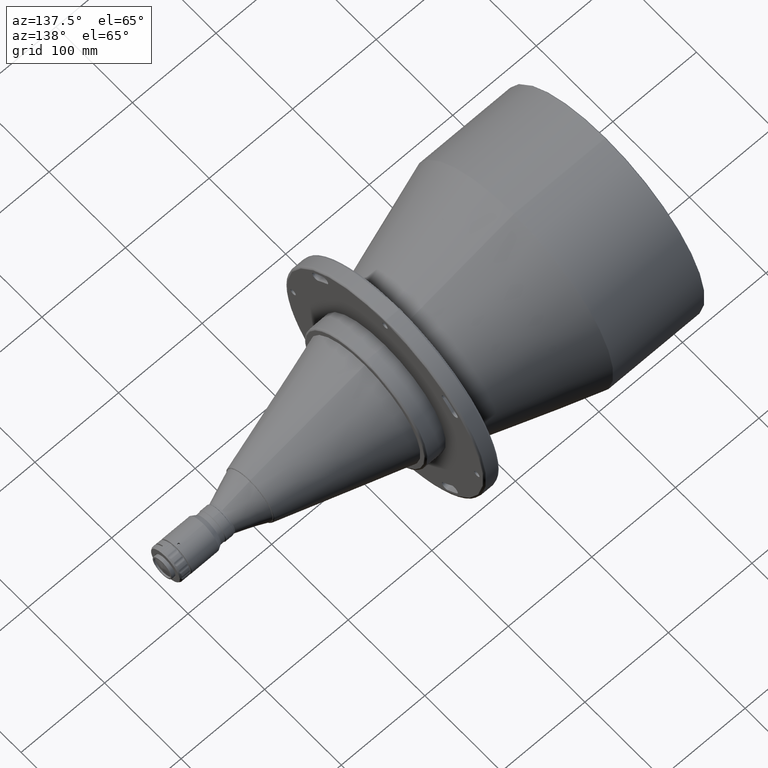
[diagram: clean part render]
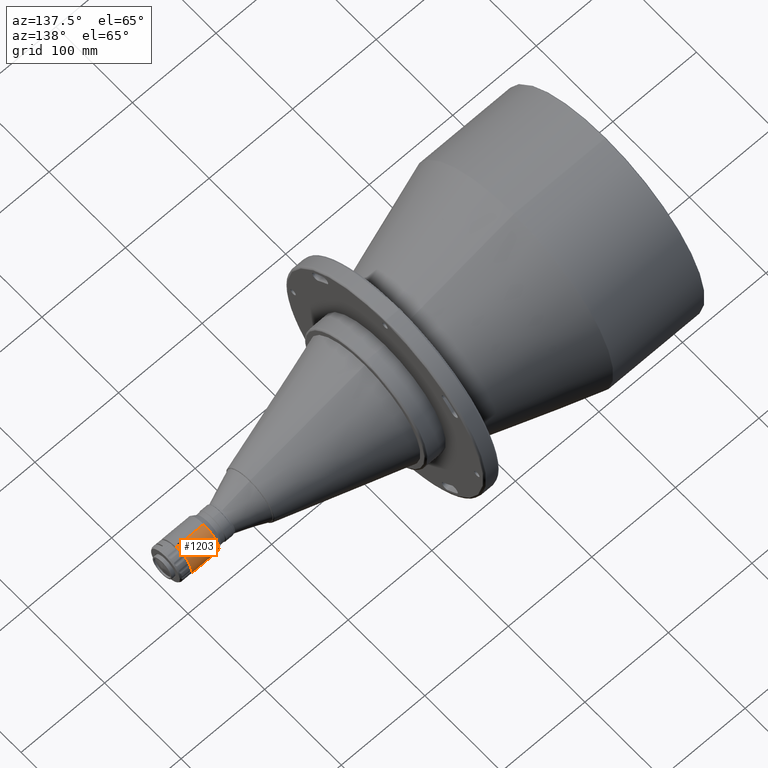
[diagram: same view with one face highlighted and labeled with its STEP entity id]
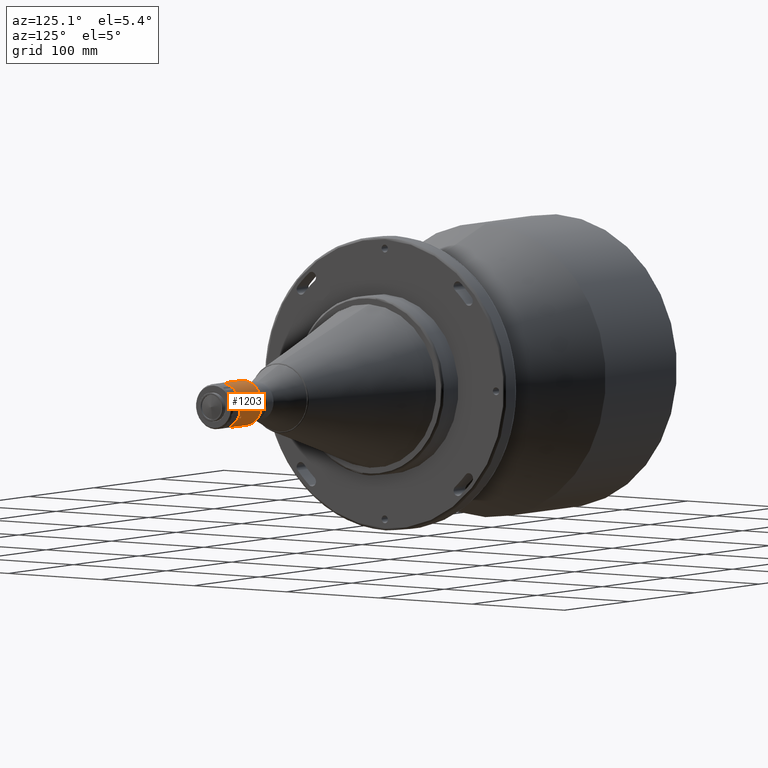
[diagram: same view with one face highlighted and labeled with its STEP entity id]
A machine part, auxiliary view. The second image highlights one B-rep face of the part: STEP entity #1203.
A second angle (auxiliary view) of the same face is appended — the face is thin or edge-on in the first view.
In plain terms, the highlighted cylindrical surface (edge-blend (fillet) strip) has radius 20 mm, axis along (-1, -0, 0).
Its self-contained STEP definition (entity closure, byte-faithful):
#169 = DIRECTION ( 'NONE',  ( 5.551115123037722200E-015, -0.5229793191917037100, 0.8523453711364789000 ) ) ;
#224 = VERTEX_POINT ( 'NONE', #5901 ) ;
#312 = DIRECTION ( 'NONE',  ( 1.000000000000000000, 0.0000000000000000000, 0.0000000000000000000 ) ) ;
#345 = B_SPLINE_CURVE_WITH_KNOTS ( 'NONE', 3,
 ( #1974, #2986, #4461, #3458, #6645, #6113, #1933, #3967, #5575, #1388, #3488, #401, #4512, #897, #6064, #4486, #945, #3991 ),
 .UNSPECIFIED., .F., .F.,
 ( 4, 2, 2, 2, 2, 2, 2, 2, 4 ),
 ( 0.003908195615232852200, 0.004396720543838182600, 0.004885245472443512100, 0.005373770401048841600, 0.005862295329654172000, 0.006350820258259502400, 0.006839345186864831900, 0.007327870115470161400, 0.007816395044075491800 ),
 .UNSPECIFIED. ) ;
#401 = CARTESIAN_POINT ( 'NONE',  ( 509.6344244999423300, 17.87324687704905600, -8.976077518674532700 ) ) ;
#450 = CARTESIAN_POINT ( 'NONE',  ( 511.2975782089147300, 0.5839967581304059700, 19.99157036861217700 ) ) ;
#477 = EDGE_CURVE ( 'NONE', #224, #1634, #4147, .T. ) ;
#495 = CARTESIAN_POINT ( 'NONE',  ( 510.7271121309999600, 0.7157847740805752800, 19.98718720005106800 ) ) ;
#517 = CARTESIAN_POINT ( 'NONE',  ( 511.8062641245186900, 0.1070582894717517100, 20.00000000031727200 ) ) ;
#588 = CIRCLE ( 'NONE', #5218, 20.00000000031727200 ) ;
#694 = AXIS2_PLACEMENT_3D ( 'NONE', #3366, #823, #1343 ) ;
#747 = EDGE_CURVE ( 'NONE', #2207, #5349, #3817, .T. ) ;
#757 = LINE ( 'NONE', #6357, #5126 ) ;
#779 = CARTESIAN_POINT ( 'NONE',  ( 511.9772241503872600, 17.50441035441608100, -9.675856995409500200 ) ) ;
#823 = DIRECTION ( 'NONE',  ( -1.000000000000000000, -0.0000000000000000000, 0.0000000000000000000 ) ) ;
#889 = EDGE_CURVE ( 'NONE', #2207, #4958, #588, .T. ) ;
#897 = CARTESIAN_POINT ( 'NONE',  ( 509.9591840001825700, 18.03669595514715600, -8.642410342995349400 ) ) ;
#909 = EDGE_LOOP ( 'NONE', ( #2976, #3079 ) ) ;
#945 = CARTESIAN_POINT ( 'NONE',  ( 510.5619227639829200, 18.14317718811398800, -8.415766245645555100 ) ) ;
#964 = CARTESIAN_POINT ( 'NONE',  ( 514.0271121309998500, 0.0000000000000000000, 20.00000000031727200 ) ) ;
#1008 = VECTOR ( 'NONE', #1471, 1000.000000000000000 ) ;
#1056 = ORIENTED_EDGE ( 'NONE', *, *, #477, .F. ) ;
#1067 = EDGE_CURVE ( 'NONE', #4958, #4973, #757, .T. ) ;
#1100 = B_SPLINE_CURVE_WITH_KNOTS ( 'NONE', 3,
 ( #2563, #517, #4555, #2609, #3055, #450, #4135, #4064, #1523, #495 ),
 .UNSPECIFIED., .F., .F.,
 ( 4, 2, 2, 2, 4 ),
 ( 0.002504853206497468000, 0.002855688808363084700, 0.003206524410228701400, 0.003557360012094318000, 0.003908195613959934700 ),
 .UNSPECIFIED. ) ;
#1166 = DIRECTION ( 'NONE',  ( -1.000000000000000000, -0.0000000000000000000, 0.0000000000000000000 ) ) ;
#1186 = EDGE_CURVE ( 'NONE', #5349, #4442, #1942, .T. ) ;
#1203 = ADVANCED_FACE ( 'NONE', ( #4509, #2186 ), #6642, .T. ) ;
#1233 = DIRECTION ( 'NONE',  ( -1.000000000000000000, -0.0000000000000000000, 0.0000000000000000000 ) ) ;
#1262 = CARTESIAN_POINT ( 'NONE',  ( 509.6975380368111800, 0.2118306807611761200, 20.00000000031727200 ) ) ;
#1281 = CARTESIAN_POINT ( 'NONE',  ( 511.4950402582449000, 17.08336534250032200, -10.40059066062089100 ) ) ;
#1296 = CARTESIAN_POINT ( 'NONE',  ( 481.3661524229998500, 0.0000000000000000000, 0.0000000000000000000 ) ) ;
#1343 = DIRECTION ( 'NONE',  ( 0.0000000000000000000, 0.0000000000000000000, 1.000000000000000000 ) ) ;
#1346 = CIRCLE ( 'NONE', #6151, 20.00000000031727200 ) ;
#1388 = CARTESIAN_POINT ( 'NONE',  ( 509.4770001112914900, 17.65904441899761300, -9.390673067419740500 ) ) ;
#1438 = CARTESIAN_POINT ( 'NONE',  ( 514.0271121309998500, 0.0000000000000000000, 20.00000000031727200 ) ) ;
#1471 = DIRECTION ( 'NONE',  ( -1.000000000000000000, -0.0000000000000000000, 0.0000000000000000000 ) ) ;
#1523 = CARTESIAN_POINT ( 'NONE',  ( 510.8457432340981700, 0.7157847743252714300, 19.98718720004230700 ) ) ;
#1634 = VERTEX_POINT ( 'NONE', #2709 ) ;
#1801 = CARTESIAN_POINT ( 'NONE',  ( 511.7262889685174500, 17.93538337069939800, -8.850725346144335100 ) ) ;
#1824 = CARTESIAN_POINT ( 'NONE',  ( 511.8194166333762500, 17.87342558896817800, -8.975705252955839000 ) ) ;
#1853 = CARTESIAN_POINT ( 'NONE',  ( 510.1578603308155400, 0.5846316781946862000, 19.99155176038481600 ) ) ;
#1862 = ORIENTED_EDGE ( 'NONE', *, *, #5996, .F. ) ;
#1933 = CARTESIAN_POINT ( 'NONE',  ( 509.6348076294149200, 17.27360725960651800, -10.08192041791096100 ) ) ;
#1942 = CIRCLE ( 'NONE', #5805, 20.00000000031727200 ) ;
#1950 = CARTESIAN_POINT ( 'NONE',  ( 510.7271121309999600, 16.95151947713315000, -10.61348140004335700 ) ) ;
#1974 = CARTESIAN_POINT ( 'NONE',  ( 510.7271121309999600, 16.95151947713315000, -10.61348140004335700 ) ) ;
#2136 = B_SPLINE_CURVE_WITH_KNOTS ( 'NONE', 3,
 ( #4884, #5886, #6436, #2836, #1853, #6457, #1262, #4431 ),
 .UNSPECIFIED., .F., .F.,
 ( 4, 2, 2, 4 ),
 ( 0.003908195613959934700, 0.004259271483725663900, 0.004610347353491393200, 0.005312499093022571500 ),
 .UNSPECIFIED. ) ;
#2157 = EDGE_CURVE ( 'NONE', #5107, #6283, #345, .T. ) ;
#2186 = FACE_OUTER_BOUND ( 'NONE', #3011, .T. ) ;
#2207 = VERTEX_POINT ( 'NONE', #5001 ) ;
#2220 = CARTESIAN_POINT ( 'NONE',  ( 514.0271121309998500, 2.449293598333560700E-015, -20.00000000031727200 ) ) ;
#2324 = CARTESIAN_POINT ( 'NONE',  ( 510.8923011674468700, 16.95151947696652400, -10.61348140030948500 ) ) ;
#2511 = ORIENTED_EDGE ( 'NONE', *, *, #889, .F. ) ;
#2563 = CARTESIAN_POINT ( 'NONE',  ( 511.8569237022239200, -4.690436231486424200E-015, 20.00000000031727200 ) ) ;
#2609 = CARTESIAN_POINT ( 'NONE',  ( 511.5859103815129200, 0.3812623940141321400, 19.99655987773064700 ) ) ;
#2701 = ORIENTED_EDGE ( 'NONE', *, *, #747, .T. ) ;
#2709 = CARTESIAN_POINT ( 'NONE',  ( 481.3661524229998500, 0.0000000000000000000, 20.00000000031727200 ) ) ;
#2836 = CARTESIAN_POINT ( 'NONE',  ( 510.2662790917697700, 0.6335854747716335200, 19.98998865746574400 ) ) ;
#2976 = ORIENTED_EDGE ( 'NONE', *, *, #2157, .F. ) ;
#2981 = CARTESIAN_POINT ( 'NONE',  ( 511.0543918647537700, 18.12952558939848700, -8.445368613404149000 ) ) ;
#2986 = CARTESIAN_POINT ( 'NONE',  ( 510.5619229284055200, 16.95151947729977600, -10.61348139977722800 ) ) ;
#3011 = EDGE_LOOP ( 'NONE', ( #2511, #2701, #5180, #5313, #1056, #3667, #1862, #3225 ) ) ;
#3055 = CARTESIAN_POINT ( 'NONE',  ( 511.4952659190188300, 0.4585323578507444200, 19.99484148708068800 ) ) ;
#3079 = ORIENTED_EDGE ( 'NONE', *, *, #4253, .F. ) ;
#3115 = B_SPLINE_CURVE_WITH_KNOTS ( 'NONE', 3,
 ( #4507, #5567, #2981, #6622, #4515, #1801, #1824, #4882, #3350, #779, #4903, #4356, #3867, #1281, #5927, #5420, #2324, #5445 ),
 .UNSPECIFIED., .F., .F.,
 ( 4, 2, 2, 2, 2, 2, 2, 2, 4 ),
 ( 5.061385873856955300E-012, 0.0004885244563328191300, 0.0009770489076042522800, 0.001465573358875685600, 0.001954097810147118800, 0.002442622261418551900, 0.002931146712689985500, 0.003419671163961418700, 0.003908195615232852200 ),
 .UNSPECIFIED. ) ;
#3225 = ORIENTED_EDGE ( 'NONE', *, *, #1067, .F. ) ;
#3350 = CARTESIAN_POINT ( 'NONE',  ( 511.9769995201026500, 17.65985285890795700, -9.389152648302429700 ) ) ;
#3366 = CARTESIAN_POINT ( 'NONE',  ( 514.0271121309998500, 0.0000000000000000000, 0.0000000000000000000 ) ) ;
#3458 = CARTESIAN_POINT ( 'NONE',  ( 510.0971200184972600, 17.03506780594272000, -10.47904642416695100 ) ) ;
#3488 = CARTESIAN_POINT ( 'NONE',  ( 509.5093252554449900, 17.73530981172842400, -9.245631802705951000 ) ) ;
#3517 = CARTESIAN_POINT ( 'NONE',  ( 514.0271121309998500, 0.0000000000000000000, 0.0000000000000000000 ) ) ;
#3667 = ORIENTED_EDGE ( 'NONE', *, *, #5361, .F. ) ;
#3817 = LINE ( 'NONE', #2220, #5533 ) ;
#3849 = CARTESIAN_POINT ( 'NONE',  ( 481.3661524229998500, 2.449293598333560700E-015, -20.00000000031727200 ) ) ;
#3867 = CARTESIAN_POINT ( 'NONE',  ( 511.7282102862568000, 17.20374148490659400, -10.20024197926890600 ) ) ;
#3967 = CARTESIAN_POINT ( 'NONE',  ( 509.5100913622216000, 17.42329974364609100, -9.820959887673041100 ) ) ;
#3991 = CARTESIAN_POINT ( 'NONE',  ( 510.7271121309999600, 18.14317718945057900, -8.415766244667857200 ) ) ;
#4030 = EDGE_CURVE ( 'NONE', #4442, #1634, #1346, .T. ) ;
#4064 = CARTESIAN_POINT ( 'NONE',  ( 510.9637248068796700, 0.6987201736733065200, 19.98781776696906200 ) ) ;
#4135 = CARTESIAN_POINT ( 'NONE',  ( 511.1882846534700800, 0.6333667203847966900, 19.98999538679714800 ) ) ;
#4147 = LINE ( 'NONE', #964, #1008 ) ;
#4253 = EDGE_CURVE ( 'NONE', #6283, #5107, #3115, .T. ) ;
#4356 = CARTESIAN_POINT ( 'NONE',  ( 511.8197997602773600, 17.27382173560490800, -10.08156754655803900 ) ) ;
#4431 = CARTESIAN_POINT ( 'NONE',  ( 509.5973005597760400, -4.676739356424105000E-015, 20.00000000031727200 ) ) ;
#4442 = VERTEX_POINT ( 'NONE', #6702 ) ;
#4461 = CARTESIAN_POINT ( 'NONE',  ( 510.3998323975482700, 16.96887980950638000, -10.58589000148023000 ) ) ;
#4486 = CARTESIAN_POINT ( 'NONE',  ( 510.3995134178329600, 18.12949412940180900, -8.445436744107368600 ) ) ;
#4507 = CARTESIAN_POINT ( 'NONE',  ( 510.7271121309999600, 18.14317718945057900, -8.415766244667857200 ) ) ;
#4509 = FACE_BOUND ( 'NONE', #909, .T. ) ;
#4512 = CARTESIAN_POINT ( 'NONE',  ( 509.7260139736665700, 17.93446796159449600, -8.852599417666864300 ) ) ;
#4515 = CARTESIAN_POINT ( 'NONE',  ( 511.4957347686385000, 18.03631802387046100, -8.643179273198487800 ) ) ;
#4555 = CARTESIAN_POINT ( 'NONE',  ( 511.7415655151158400, 0.2050094468874131300, 19.99914345874450600 ) ) ;
#4562 = CARTESIAN_POINT ( 'NONE',  ( 510.7271121309999600, 0.7157847740805752800, 19.98718720005106800 ) ) ;
#4609 = DIRECTION ( 'NONE',  ( 1.000000000000000000, -0.0000000000000000000, -0.0000000000000000000 ) ) ;
#4882 = CARTESIAN_POINT ( 'NONE',  ( 511.9441329003463500, 17.73639603152809800, -9.243531948617677700 ) ) ;
#4884 = CARTESIAN_POINT ( 'NONE',  ( 510.7271121309999600, 0.7157847740805752800, 19.98718720005106800 ) ) ;
#4903 = CARTESIAN_POINT ( 'NONE',  ( 511.9448990058789400, 17.42446691325871900, -9.818903927527824000 ) ) ;
#4958 = VERTEX_POINT ( 'NONE', #1438 ) ;
#4973 = VERTEX_POINT ( 'NONE', #6611 ) ;
#5001 = CARTESIAN_POINT ( 'NONE',  ( 514.0271121309998500, 2.449293598333560700E-015, -20.00000000031727200 ) ) ;
#5107 = VERTEX_POINT ( 'NONE', #1950 ) ;
#5126 = VECTOR ( 'NONE', #1233, 1000.000000000000000 ) ;
#5180 = ORIENTED_EDGE ( 'NONE', *, *, #1186, .T. ) ;
#5218 = AXIS2_PLACEMENT_3D ( 'NONE', #3517, #4609, #6673 ) ;
#5313 = ORIENTED_EDGE ( 'NONE', *, *, #4030, .T. ) ;
#5349 = VERTEX_POINT ( 'NONE', #3849 ) ;
#5361 = EDGE_CURVE ( 'NONE', #5544, #224, #2136, .T. ) ;
#5420 = CARTESIAN_POINT ( 'NONE',  ( 511.0547108397161100, 16.96891974213448200, -10.58582646616066300 ) ) ;
#5445 = CARTESIAN_POINT ( 'NONE',  ( 510.7271121309999600, 16.95151947713315000, -10.61348140004335700 ) ) ;
#5533 = VECTOR ( 'NONE', #1166, 1000.000000000000000 ) ;
#5544 = VERTEX_POINT ( 'NONE', #4562 ) ;
#5567 = CARTESIAN_POINT ( 'NONE',  ( 510.8923013260864500, 18.14317718870044900, -8.415766244381249100 ) ) ;
#5575 = CARTESIAN_POINT ( 'NONE',  ( 509.4772247422218900, 17.50357723113096100, -9.677364029792773400 ) ) ;
#5805 = AXIS2_PLACEMENT_3D ( 'NONE', #5944, #312, #5921 ) ;
#5845 = DIRECTION ( 'NONE',  ( 1.000000000000000000, 0.0000000000000000000, 0.0000000000000000000 ) ) ;
#5886 = CARTESIAN_POINT ( 'NONE',  ( 510.6083997788690600, 0.7157847738357116000, 19.98718720005984300 ) ) ;
#5901 = CARTESIAN_POINT ( 'NONE',  ( 509.5973005597760400, -4.676739356424105000E-015, 20.00000000031727200 ) ) ;
#5921 = DIRECTION ( 'NONE',  ( 5.551115123037722200E-015, -0.5229793191917037100, 0.8523453711364789000 ) ) ;
#5927 = CARTESIAN_POINT ( 'NONE',  ( 511.3575322503033400, 17.03519127440497600, -10.47884618796866400 ) ) ;
#5944 = CARTESIAN_POINT ( 'NONE',  ( 481.3661524229998500, 0.0000000000000000000, 0.0000000000000000000 ) ) ;
#5996 = EDGE_CURVE ( 'NONE', #4973, #5544, #1100, .T. ) ;
#6064 = CARTESIAN_POINT ( 'NONE',  ( 510.0966920078439000, 18.07599541985720400, -8.559342776640908900 ) ) ;
#6113 = CARTESIAN_POINT ( 'NONE',  ( 509.7279352943020300, 17.20267034253234300, -10.20203160615296200 ) ) ;
#6151 = AXIS2_PLACEMENT_3D ( 'NONE', #1296, #5845, #169 ) ;
#6283 = VERTEX_POINT ( 'NONE', #6620 ) ;
#6357 = CARTESIAN_POINT ( 'NONE',  ( 514.0271121309998500, 0.0000000000000000000, 20.00000000031727200 ) ) ;
#6436 = CARTESIAN_POINT ( 'NONE',  ( 510.4925180122821200, 0.6991864207025740900, 19.98780166572992900 ) ) ;
#6457 = CARTESIAN_POINT ( 'NONE',  ( 509.8607671427124600, 0.3964837358829387800, 19.99646330125115800 ) ) ;
#6611 = CARTESIAN_POINT ( 'NONE',  ( 511.8569237022239200, -4.690436231486424200E-015, 20.00000000031727200 ) ) ;
#6620 = CARTESIAN_POINT ( 'NONE',  ( 510.7271121309999600, 18.14317718945057900, -8.415766244667857200 ) ) ;
#6622 = CARTESIAN_POINT ( 'NONE',  ( 511.3571042440315800, 18.07609586729773100, -8.559130055629950100 ) ) ;
#6642 = CYLINDRICAL_SURFACE ( 'NONE', #694, 20.00000000031727200 ) ;
#6645 = CARTESIAN_POINT ( 'NONE',  ( 509.9584894940975900, 17.08380355658435300, -10.39985441469360000 ) ) ;
#6673 = DIRECTION ( 'NONE',  ( 0.0000000000000000000, 0.5229793191917023700, -0.8523453711364797900 ) ) ;
#6702 = CARTESIAN_POINT ( 'NONE',  ( 481.3661524229998500, 20.00000000031719300, -4.436778161610365500E-015 ) ) ;